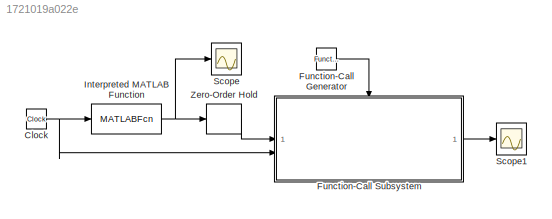
MODEL slx_1721019a022e
KIND model
CONFIG AbsTol = auto
CONFIG EnableMultiTasking = off
CONFIG FixedStep = auto
CONFIG MaxStep = auto
CONFIG MinStep = auto
CONFIG RelTol = 1e-3
CONFIG SampleTimeConstraint = Unconstrained
CONFIG SolverName = VariableStepAuto
CONFIG StartTime = 0.0
CONFIG StopTime = 10.0
BLOCK [Clock] Clock
BLOCK [Reference] Function-Call Generator  REF=simulink/Ports &
Subsystems/Function-Call
Generator
  SourceBlock = simulink/Ports &\nSubsystems/Function-Call\nGenerator
  SourceType = Function-Call Generator
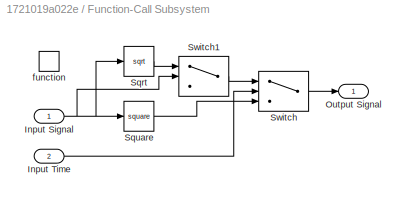
BLOCK [SubSystem] Function-Call Subsystem
  TreatAsAtomicUnit = on
BLOCK [Inport] Function-Call Subsystem/Input Signal
BLOCK [Inport] Function-Call Subsystem/Input Time
  Port = 2
BLOCK [Outport] Function-Call Subsystem/Output Signal
BLOCK [Sqrt] Function-Call Subsystem/Sqrt
BLOCK [Math] Function-Call Subsystem/Square
  Operator = square
BLOCK [Switch] Function-Call Subsystem/Switch
  Criteria = u2 > Threshold
  InputSameDT = off
  SaturateOnIntegerOverflow = off
  Threshold = 1
BLOCK [Switch] Function-Call Subsystem/Switch1
  Criteria = u2 > Threshold
  InputSameDT = off
  SaturateOnIntegerOverflow = off
BLOCK [TriggerPort] Function-Call Subsystem/function
  StatesWhenEnabling = held
  TriggerType = function-call
  VariantControl = (inherit)
BLOCK [MATLABFcn] Interpreted MATLAB Function
  MATLABFcn = 2*sin(pi*1.00*u)
BLOCK [Scope] Scope
  Floating = off
  NumInputPorts = 1
  ScopeSpecificationString = Simulink.scopes.TimeScopeBlockCfg('CurrentConfiguration', extmgr.ConfigurationSet(extmgr.Configuration('Core','General UI',true),extmgr.Configuration('Core','Source UI',true),extmgr.Configuration('Sources','WiredSimulink',true),extmgr.Configuration('Visuals','Time Domain',true,'SerializedDisplays',{struct('MinYLimReal','-2.5','MaxYLimReal','2.5','YLabelReal','','MinYLimMag','0.00000','MaxYLimMag',...<+1378ch>
BLOCK [Scope] Scope1
  Floating = off
  NumInputPorts = 1
  ScopeSpecificationString = Simulink.scopes.TimeScopeBlockCfg('CurrentConfiguration', extmgr.ConfigurationSet(extmgr.Configuration('Core','General UI',true),extmgr.Configuration('Core','Source UI',true),extmgr.Configuration('Sources','WiredSimulink',true,'DataLoggingVariableName','ScopeData1'),extmgr.Configuration('Visuals','Time Domain',true,'SerializedDisplays',{struct('MinYLimReal','-0.5','MaxYLimReal','4.5','YLabelReal',...<+1545ch>
BLOCK [ZeroOrderHold] Zero-Order Hold
  SampleTime = 1/10000
NET Clock:1 -> Function-Call Subsystem:2, Interpreted MATLAB Function:1
LINE Function-Call Generator:1 -> Function-Call Subsystem:trigger
NET Function-Call Subsystem/Input Signal:1 -> Function-Call Subsystem/Sqrt:1, Function-Call Subsystem/Square:1, Function-Call Subsystem/Switch1:2
LINE Function-Call Subsystem/Input Time:1 -> Function-Call Subsystem/Switch:2
LINE Function-Call Subsystem/Sqrt:1 -> Function-Call Subsystem/Switch1:1
LINE Function-Call Subsystem/Square:1 -> Function-Call Subsystem/Switch:3
LINE Function-Call Subsystem/Switch1:1 -> Function-Call Subsystem/Switch:1
LINE Function-Call Subsystem/Switch:1 -> Function-Call Subsystem/Output Signal:1
LINE Function-Call Subsystem:1 -> Scope1:1
NET Interpreted MATLAB Function:1 -> Scope:1, Zero-Order Hold:1
LINE Zero-Order Hold:1 -> Function-Call Subsystem:1
note: NET lines group one-source signal fan-out (src -> all destinations, sorted); 1:1 wires keep LINE
